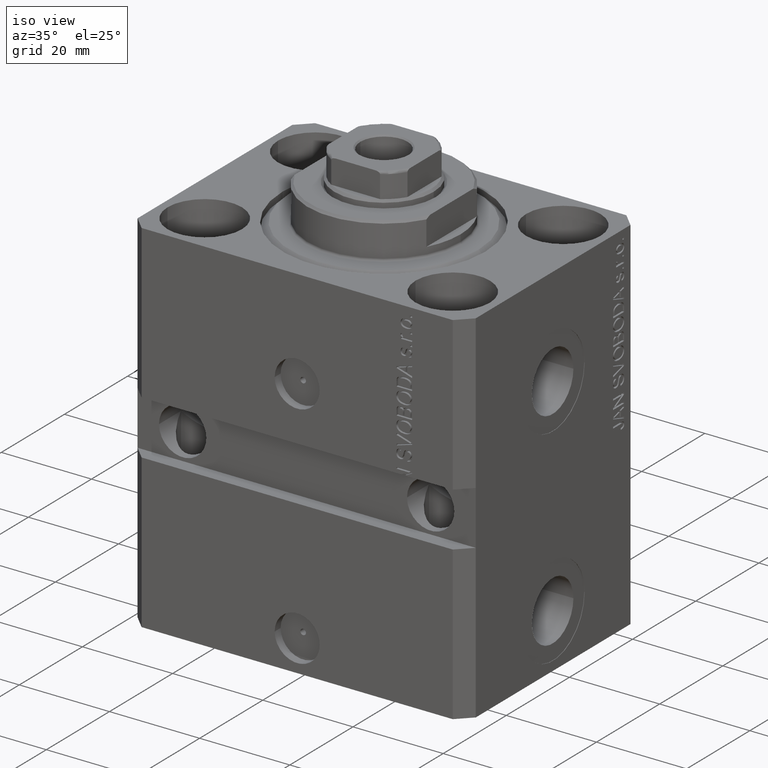
[diagram: clean part render]
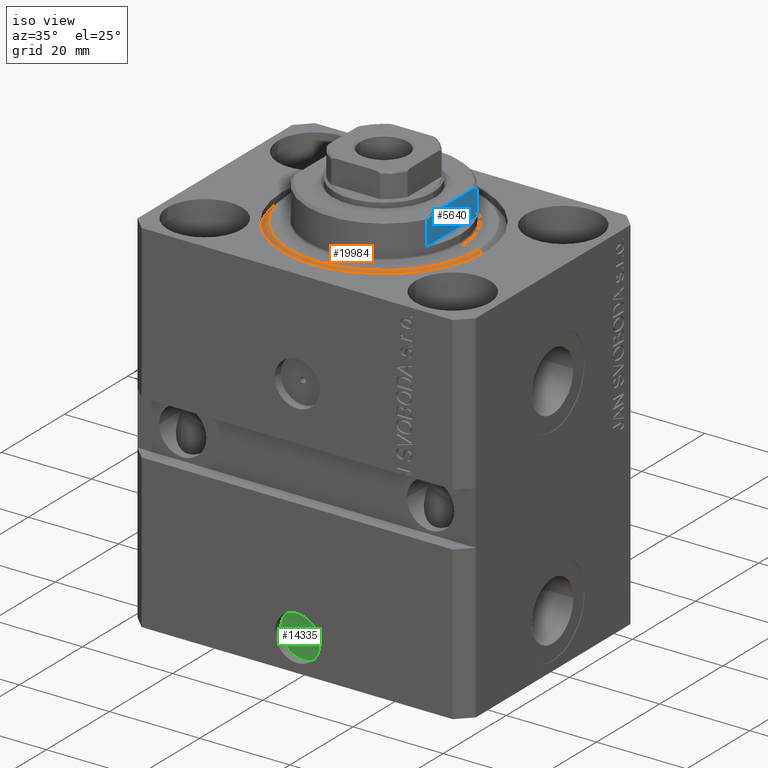
[diagram: same view with three faces highlighted in distinct colors, each labeled with its STEP entity id]
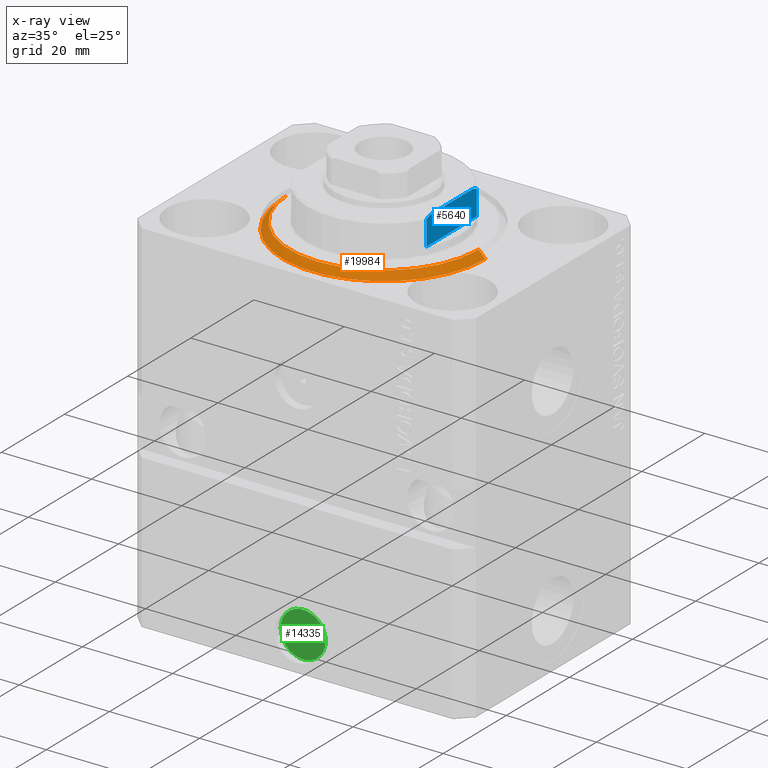
[diagram: x-ray of the same camera — body ghosted, the three highlighted faces saturated]
A machine part, iso view with three faces highlighted in distinct colors.
The next image is the same camera in x-ray (body ghosted, the three faces saturated) — at least one of them is partly hidden behind the body in this view.
Their STEP definitions:

[orange] entity #19984 — the highlighted conical surface has half-angle 45 deg.
#24 = DIRECTION ( 'NONE',  ( 1.000000000000000000, 0.000000000000000000, 0.000000000000000000 ) ) ;
#105 = LINE ( 'NONE', #37985, #33755 ) ;
#213 = VERTEX_POINT ( 'NONE', #7837 ) ;
#323 = DIRECTION ( 'NONE',  ( -0.7071067811865500152, 8.659560562354962440E-17, 0.7071067811865451302 ) ) ;
#1006 = DIRECTION ( 'NONE',  ( 0.7071067811865500152, 0.000000000000000000, 0.7071067811865451302 ) ) ;
#3360 = DIRECTION ( 'NONE',  ( -0.000000000000000000, -0.000000000000000000, 1.000000000000000000 ) ) ;
#3981 = CARTESIAN_POINT ( 'NONE',  ( -22.50000000000000355, 0.000000000000000000, 1.500000000000039524 ) ) ;
#7837 = CARTESIAN_POINT ( 'NONE',  ( -20.99999999999995381, 2.663606788145490261E-15, 0.000000000000000000 ) ) ;
#8838 = CONICAL_SURFACE ( 'NONE', #36623, 22.50000000000000355, 0.7853981633974517207 ) ;
#9885 = VERTEX_POINT ( 'NONE', #3981 ) ;
#11369 = DIRECTION ( 'NONE',  ( -0.000000000000000000, -0.000000000000000000, -1.000000000000000000 ) ) ;
#11481 = LINE ( 'NONE', #31541, #35387 ) ;
#14200 = CARTESIAN_POINT ( 'NONE',  ( 22.50000000000000355, 2.755455298081544383E-15, 1.500000000000039524 ) ) ;
#15950 = VERTEX_POINT ( 'NONE', #14200 ) ;
#17065 = ORIENTED_EDGE ( 'NONE', *, *, #28686, .F. ) ;
#19607 = DIRECTION ( 'NONE',  ( -0.000000000000000000, -0.000000000000000000, 1.000000000000000000 ) ) ;
#19627 = AXIS2_PLACEMENT_3D ( 'NONE', #21838, #11369, #28514 ) ;
#19984 = ADVANCED_FACE ( 'NONE', ( #22505 ), #8838, .T. ) ;
#20290 = EDGE_CURVE ( 'NONE', #213, #9885, #105, .T. ) ;
#20441 = CIRCLE ( 'NONE', #43989, 22.50000000000000355 ) ;
#21494 = ORIENTED_EDGE ( 'NONE', *, *, #20290, .F. ) ;
#21838 = CARTESIAN_POINT ( 'NONE',  ( 0.000000000000000000, 0.000000000000000000, 0.000000000000000000 ) ) ;
#22151 = EDGE_LOOP ( 'NONE', ( #21494, #41866, #41277, #17065 ) ) ;
#22505 = FACE_OUTER_BOUND ( 'NONE', #22151, .T. ) ;
#23635 = CARTESIAN_POINT ( 'NONE',  ( 0.000000000000000000, 0.000000000000000000, 1.500000000000039524 ) ) ;
#27616 = EDGE_CURVE ( 'NONE', #33165, #15950, #11481, .T. ) ;
#28514 = DIRECTION ( 'NONE',  ( 1.000000000000000000, 0.000000000000000000, 0.000000000000000000 ) ) ;
#28686 = EDGE_CURVE ( 'NONE', #9885, #15950, #20441, .T. ) ;
#30326 = CIRCLE ( 'NONE', #19627, 20.99999999999995381 ) ;
#31541 = CARTESIAN_POINT ( 'NONE',  ( 22.50000000000000355, 0.000000000000000000, 1.500000000000039524 ) ) ;
#33165 = VERTEX_POINT ( 'NONE', #38523 ) ;
#33437 = DIRECTION ( 'NONE',  ( 1.000000000000000000, 0.000000000000000000, 0.000000000000000000 ) ) ;
#33755 = VECTOR ( 'NONE', #323, 1000.000000000000114 ) ;
#35383 = EDGE_CURVE ( 'NONE', #33165, #213, #30326, .T. ) ;
#35387 = VECTOR ( 'NONE', #1006, 1000.000000000000114 ) ;
#36118 = CARTESIAN_POINT ( 'NONE',  ( 0.000000000000000000, 0.000000000000000000, 1.500000000000039524 ) ) ;
#36623 = AXIS2_PLACEMENT_3D ( 'NONE', #36118, #19607, #33437 ) ;
#37985 = CARTESIAN_POINT ( 'NONE',  ( -22.50000000000000355, 2.755455298081545172E-15, 1.500000000000039524 ) ) ;
#38523 = CARTESIAN_POINT ( 'NONE',  ( 20.99999999999995381, 0.000000000000000000, 0.000000000000000000 ) ) ;
#41277 = ORIENTED_EDGE ( 'NONE', *, *, #27616, .T. ) ;
#41866 = ORIENTED_EDGE ( 'NONE', *, *, #35383, .F. ) ;
#43989 = AXIS2_PLACEMENT_3D ( 'NONE', #23635, #3360, #24 ) ;

[blue] entity #5640 — the highlighted planar face has unit normal (-1, 0, 0).
#58 = ORIENTED_EDGE ( 'NONE', *, *, #8311, .T. ) ;
#3030 = EDGE_CURVE ( 'NONE', #26123, #28629, #15340, .T. ) ;
#3587 = CARTESIAN_POINT ( 'NONE',  ( -14.99999999999999645, 8.000000000000003553, -2.000000000000000000 ) ) ;
#3603 = AXIS2_PLACEMENT_3D ( 'NONE', #31124, #23988, #37600 ) ;
#3746 = CARTESIAN_POINT ( 'NONE',  ( -15.00000000000000000, -7.629305121525818301, -7.674444648693746984 ) ) ;
#3940 = PLANE ( 'NONE',  #3603 ) ;
#5640 = ADVANCED_FACE ( 'NONE', ( #10390 ), #3940, .F. ) ;
#5989 = EDGE_CURVE ( 'NONE', #36073, #42524, #44139, .T. ) ;
#6027 = B_SPLINE_CURVE_WITH_KNOTS ( 'NONE', 3,
 ( #27798, #20665, #3746, #28238 ),
 .UNSPECIFIED., .F., .F.,
 ( 4, 4 ),
 ( 0.04875332532859062012, 0.04998905627745663799 ),
 .UNSPECIFIED. ) ;
#6470 = DIRECTION ( 'NONE',  ( 0.000000000000000000, 0.000000000000000000, -1.000000000000000000 ) ) ;
#6521 = CARTESIAN_POINT ( 'NONE',  ( -14.99999999999999645, 6.873863542433781504, -8.000000000000000000 ) ) ;
#7244 = ORIENTED_EDGE ( 'NONE', *, *, #43156, .T. ) ;
#8208 = DIRECTION ( 'NONE',  ( -0.000000000000000000, -0.000000000000000000, 1.000000000000000000 ) ) ;
#8311 = EDGE_CURVE ( 'NONE', #25608, #42524, #6027, .T. ) ;
#9675 = EDGE_LOOP ( 'NONE', ( #41937, #7244, #58, #25909, #41224, #39598 ) ) ;
#9727 = VECTOR ( 'NONE', #36637, 1000.000000000000000 ) ;
#10390 = FACE_OUTER_BOUND ( 'NONE', #9675, .T. ) ;
#10808 = CARTESIAN_POINT ( 'NONE',  ( -15.00000000000000000, 7.253126193285940104, -7.842000017654667587 ) ) ;
#15340 = LINE ( 'NONE', #42554, #26306 ) ;
#15760 = VERTEX_POINT ( 'NONE', #6521 ) ;
#16354 = CARTESIAN_POINT ( 'NONE',  ( -15.00000000000000000, -42.42640687119285303, -2.000000000000000000 ) ) ;
#16848 = CARTESIAN_POINT ( 'NONE',  ( -15.00000000000000000, 7.628315461082486593, -7.674910371255312391 ) ) ;
#20665 = CARTESIAN_POINT ( 'NONE',  ( -15.00000000000000000, -7.254193676168139149, -7.841555306644512058 ) ) ;
#23027 = LINE ( 'NONE', #16354, #9727 ) ;
#23244 = LINE ( 'NONE', #23674, #26113 ) ;
#23674 = CARTESIAN_POINT ( 'NONE',  ( -15.00000000000000000, -42.42640687119285303, -8.000000000000000000 ) ) ;
#23988 = DIRECTION ( 'NONE',  ( 1.000000000000000000, 0.000000000000000000, 0.000000000000000000 ) ) ;
#25608 = VERTEX_POINT ( 'NONE', #29885 ) ;
#25909 = ORIENTED_EDGE ( 'NONE', *, *, #5989, .F. ) ;
#26113 = VECTOR ( 'NONE', #37511, 1000.000000000000000 ) ;
#26123 = VERTEX_POINT ( 'NONE', #34826 ) ;
#26306 = VECTOR ( 'NONE', #8208, 1000.000000000000000 ) ;
#26728 = EDGE_CURVE ( 'NONE', #28629, #36073, #23027, .T. ) ;
#27798 = CARTESIAN_POINT ( 'NONE',  ( -15.00000000000000000, -6.873863542433783280, -8.000000000000000000 ) ) ;
#28238 = CARTESIAN_POINT ( 'NONE',  ( -15.00000000000000000, -8.000000000000001776, -7.500000000000014211 ) ) ;
#28629 = VERTEX_POINT ( 'NONE', #3587 ) ;
#29885 = CARTESIAN_POINT ( 'NONE',  ( -15.00000000000000000, -6.873863542433783280, -8.000000000000000000 ) ) ;
#30438 = CARTESIAN_POINT ( 'NONE',  ( -14.99999999999999645, 6.873863542433781504, -8.000000000000000000 ) ) ;
#31124 = CARTESIAN_POINT ( 'NONE',  ( -15.00000000000000000, -42.42640687119285303, -2.000000000000000000 ) ) ;
#33651 = CARTESIAN_POINT ( 'NONE',  ( -15.00000000000000000, -8.000000000000001776, -8.000000000000000000 ) ) ;
#34826 = CARTESIAN_POINT ( 'NONE',  ( -15.00000000000000000, 8.000000000000001776, -7.500000000000013323 ) ) ;
#36073 = VERTEX_POINT ( 'NONE', #40389 ) ;
#36637 = DIRECTION ( 'NONE',  ( -0.000000000000000000, -1.000000000000000000, -0.000000000000000000 ) ) ;
#37511 = DIRECTION ( 'NONE',  ( -0.000000000000000000, -1.000000000000000000, -0.000000000000000000 ) ) ;
#37600 = DIRECTION ( 'NONE',  ( 0.000000000000000000, 0.000000000000000000, -1.000000000000000000 ) ) ;
#39180 = VECTOR ( 'NONE', #6470, 1000.000000000000000 ) ;
#39598 = ORIENTED_EDGE ( 'NONE', *, *, #3030, .F. ) ;
#40082 = CARTESIAN_POINT ( 'NONE',  ( -15.00000000000000000, -8.000000000000001776, -7.500000000000014211 ) ) ;
#40389 = CARTESIAN_POINT ( 'NONE',  ( -14.99999999999999645, -8.000000000000003553, -2.000000000000000000 ) ) ;
#41224 = ORIENTED_EDGE ( 'NONE', *, *, #26728, .F. ) ;
#41370 = CARTESIAN_POINT ( 'NONE',  ( -15.00000000000000000, 8.000000000000001776, -7.500000000000013323 ) ) ;
#41937 = ORIENTED_EDGE ( 'NONE', *, *, #43919, .T. ) ;
#42524 = VERTEX_POINT ( 'NONE', #40082 ) ;
#42554 = CARTESIAN_POINT ( 'NONE',  ( -15.00000000000000000, 8.000000000000001776, -8.000000000000000000 ) ) ;
#43127 = B_SPLINE_CURVE_WITH_KNOTS ( 'NONE', 3,
 ( #41370, #16848, #10808, #30438 ),
 .UNSPECIFIED., .F., .F.,
 ( 4, 4 ),
 ( 0.03336039268697044147, 0.03459498301323848946 ),
 .UNSPECIFIED. ) ;
#43156 = EDGE_CURVE ( 'NONE', #15760, #25608, #23244, .T. ) ;
#43919 = EDGE_CURVE ( 'NONE', #26123, #15760, #43127, .T. ) ;
#44139 = LINE ( 'NONE', #33651, #39180 ) ;

[green] entity #14335 — the highlighted planar face has unit normal (0, -1, 0).
#517 = DIRECTION ( 'NONE',  ( 1.176083712526788232E-16, -1.000000000000000000, 0.000000000000000000 ) ) ;
#1493 = DIRECTION ( 'NONE',  ( 1.176083712526788232E-16, -1.000000000000000000, 0.000000000000000000 ) ) ;
#1758 = VERTEX_POINT ( 'NONE', #10193 ) ;
#2560 = DIRECTION ( 'NONE',  ( 1.176083712526788232E-16, -1.000000000000000000, 0.000000000000000000 ) ) ;
#3113 = AXIS2_PLACEMENT_3D ( 'NONE', #9024, #2560, #36446 ) ;
#4496 = EDGE_CURVE ( 'NONE', #27730, #43333, #25616, .T. ) ;
#5274 = DIRECTION ( 'NONE',  ( 1.000000000000000000, 0.000000000000000000, 0.000000000000000000 ) ) ;
#5863 = CARTESIAN_POINT ( 'NONE',  ( -2.234559053800897838E-16, -25.59999999999999787, -73.00000000000000000 ) ) ;
#6771 = CARTESIAN_POINT ( 'NONE',  ( 3.010774304068577164E-15, -25.59999999999999787, -72.47499999999999432 ) ) ;
#8211 = AXIS2_PLACEMENT_3D ( 'NONE', #6771, #517, #37525 ) ;
#9024 = CARTESIAN_POINT ( 'NONE',  ( 3.010774304068577164E-15, -25.59999999999999787, -72.47499999999999432 ) ) ;
#10193 = CARTESIAN_POINT ( 'NONE',  ( 0.6250000000000067724, -25.59999999999999787, -72.47499999999999432 ) ) ;
#11943 = CIRCLE ( 'NONE', #25451, 5.000000000000006217 ) ;
#14335 = ADVANCED_FACE ( 'NONE', ( #42683, #25930 ), #22801, .T. ) ;
#16777 = DIRECTION ( 'NONE',  ( 1.176083712526788232E-16, -1.000000000000000000, 0.000000000000000000 ) ) ;
#19329 = EDGE_CURVE ( 'NONE', #39544, #1758, #43008, .T. ) ;
#19378 = EDGE_LOOP ( 'NONE', ( #19870, #40828 ) ) ;
#19870 = ORIENTED_EDGE ( 'NONE', *, *, #34994, .F. ) ;
#22200 = CARTESIAN_POINT ( 'NONE',  ( -2.234559053800897838E-16, -25.59999999999999787, -73.00000000000000000 ) ) ;
#22453 = CIRCLE ( 'NONE', #8211, 0.6250000000000036637 ) ;
#22801 = PLANE ( 'NONE',  #26592 ) ;
#25451 = AXIS2_PLACEMENT_3D ( 'NONE', #22200, #1493, #5274 ) ;
#25616 = CIRCLE ( 'NONE', #35586, 5.000000000000006217 ) ;
#25714 = DIRECTION ( 'NONE',  ( 1.176083712526788232E-16, -1.000000000000000000, 0.000000000000000000 ) ) ;
#25930 = FACE_OUTER_BOUND ( 'NONE', #41637, .T. ) ;
#26592 = AXIS2_PLACEMENT_3D ( 'NONE', #39538, #25714, #43124 ) ;
#27730 = VERTEX_POINT ( 'NONE', #37744 ) ;
#29382 = CARTESIAN_POINT ( 'NONE',  ( 5.000000000000006217, -25.59999999999999787, -73.00000000000000000 ) ) ;
#30826 = ORIENTED_EDGE ( 'NONE', *, *, #4496, .T. ) ;
#32468 = ORIENTED_EDGE ( 'NONE', *, *, #40358, .T. ) ;
#34994 = EDGE_CURVE ( 'NONE', #1758, #39544, #22453, .T. ) ;
#35586 = AXIS2_PLACEMENT_3D ( 'NONE', #5863, #16777, #40411 ) ;
#36446 = DIRECTION ( 'NONE',  ( 1.000000000000000000, 0.000000000000000000, 0.000000000000000000 ) ) ;
#37525 = DIRECTION ( 'NONE',  ( 1.000000000000000000, 0.000000000000000000, 0.000000000000000000 ) ) ;
#37744 = CARTESIAN_POINT ( 'NONE',  ( -5.000000000000006217, -25.59999999999999787, -73.00000000000000000 ) ) ;
#38883 = CARTESIAN_POINT ( 'NONE',  ( -0.6250000000000006661, -25.59999999999999787, -72.47499999999999432 ) ) ;
#39538 = CARTESIAN_POINT ( 'NONE',  ( -2.234559053800897838E-16, -25.59999999999999787, -73.00000000000000000 ) ) ;
#39544 = VERTEX_POINT ( 'NONE', #38883 ) ;
#40358 = EDGE_CURVE ( 'NONE', #43333, #27730, #11943, .T. ) ;
#40411 = DIRECTION ( 'NONE',  ( 1.000000000000000000, 0.000000000000000000, 0.000000000000000000 ) ) ;
#40828 = ORIENTED_EDGE ( 'NONE', *, *, #19329, .F. ) ;
#41637 = EDGE_LOOP ( 'NONE', ( #32468, #30826 ) ) ;
#42683 = FACE_BOUND ( 'NONE', #19378, .T. ) ;
#43008 = CIRCLE ( 'NONE', #3113, 0.6250000000000036637 ) ;
#43124 = DIRECTION ( 'NONE',  ( 1.000000000000000000, 1.176083712526788232E-16, 0.000000000000000000 ) ) ;
#43333 = VERTEX_POINT ( 'NONE', #29382 ) ;